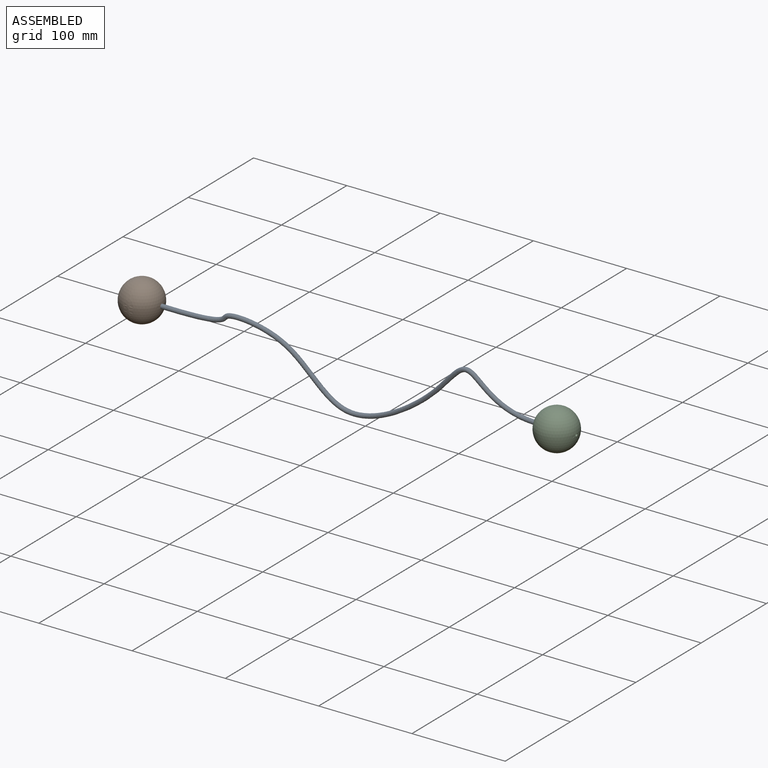
[diagram: assembled view]
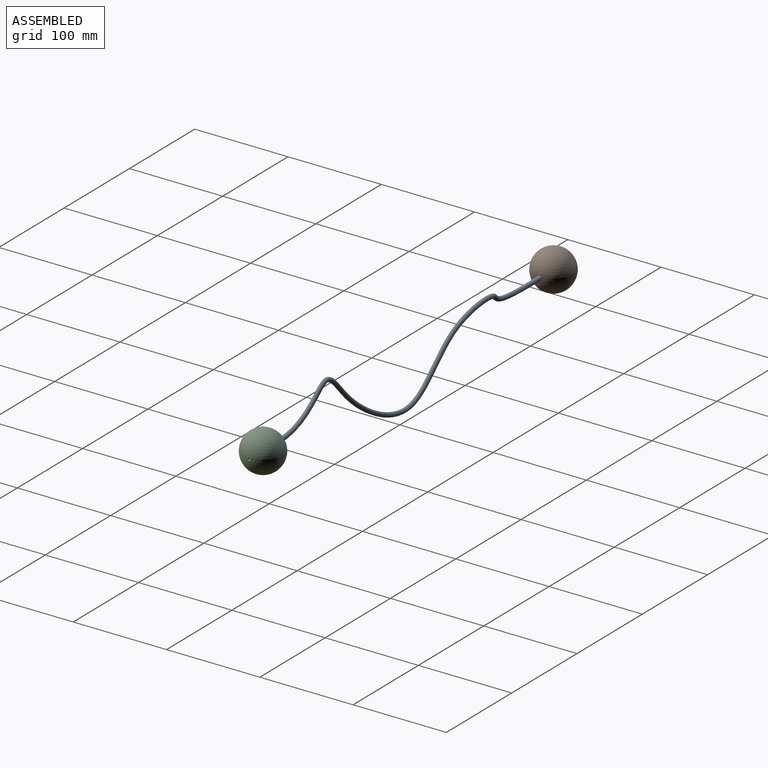
[diagram: assembled view, second angle]
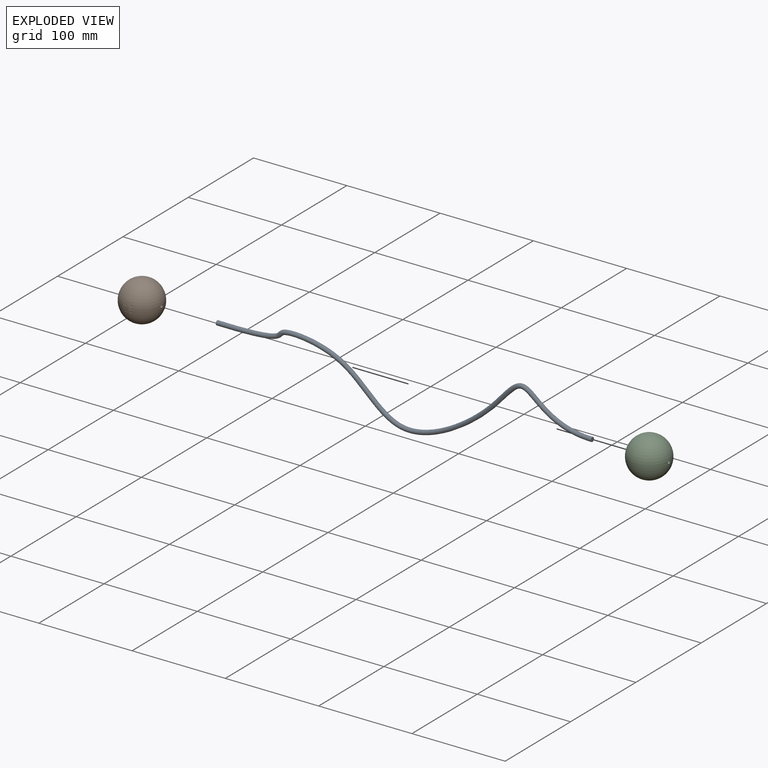
[diagram: exploded view]
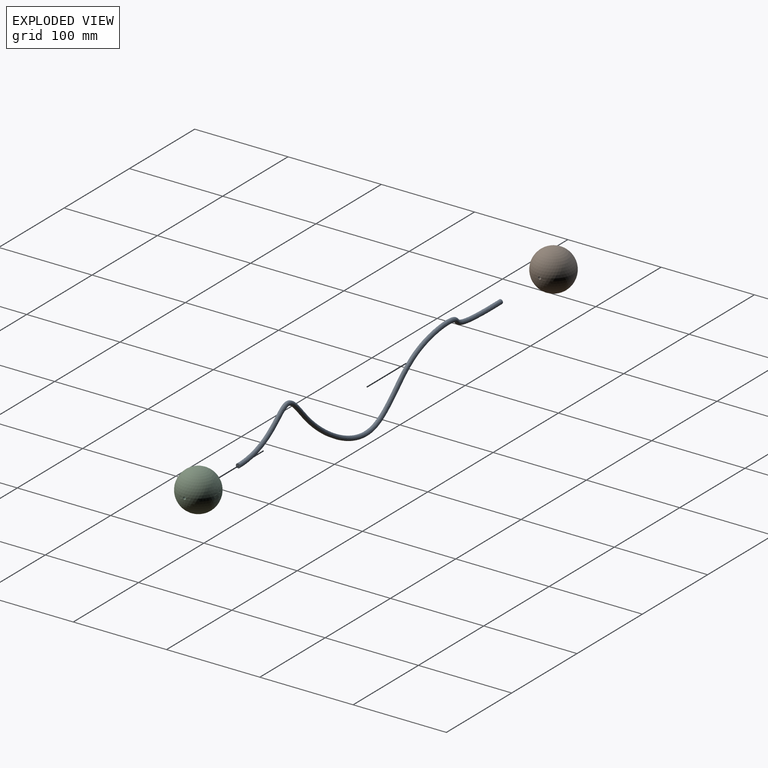
[diagram: exploded view, second angle]
ASSEMBLY  parts=3 mates=2
PART A: 3 faces, bbox 402.2x9.5x82 mm
  f0: plane 4.76x4.76mm, normal (-1,0,0), area 17.8mm2, adj f2
  f1: plane 4.76x4.76mm, normal (1,0,0.01), area 17.8mm2, adj f2
  f2: bspline ~402.23x82mm, area 6816.5mm2, adj f0,f1
PART B: 2 faces, bbox 42.7x42.7x42.7 mm
  f0: sphere r=21.34mm, area 5704.7mm2, adj f1
  f1: cylinder r=1.59mm len=42.55mm, axis (0,-1,0), area 424.5mm2, adj f0
PART C: same geometry as B
PLACE A rot(axis=(0,1,0),0.8deg) t=(-17.06,-1.97,49.96)mm
PLACE B rot(axis=(-0.01,0.01,-1),90deg) t=(-238.13,-1.97,53.03)mm
PLACE C rot(axis=(0,0,1),90deg) t=(206.58,-1.97,47.15)mm
MATE fastened B.f1 <-> A.f0  axis (-1,0,0.01) through (-216.86,-1.97,52.73)mm
MATE fastened A.f1 <-> C.f1  axis (1,0,0) through (185.3,-1.97,47.15)mm
